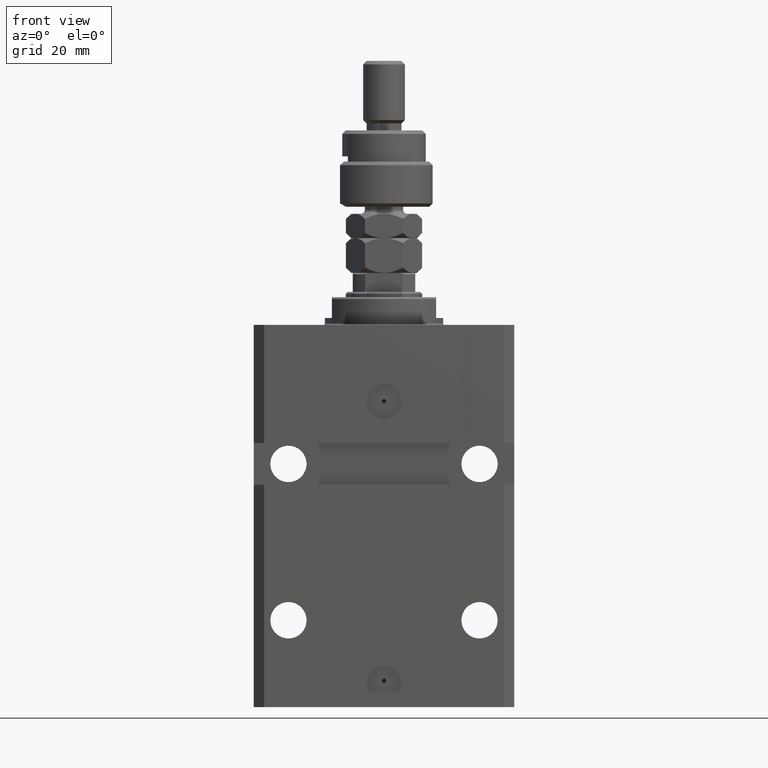
[diagram: clean part render]
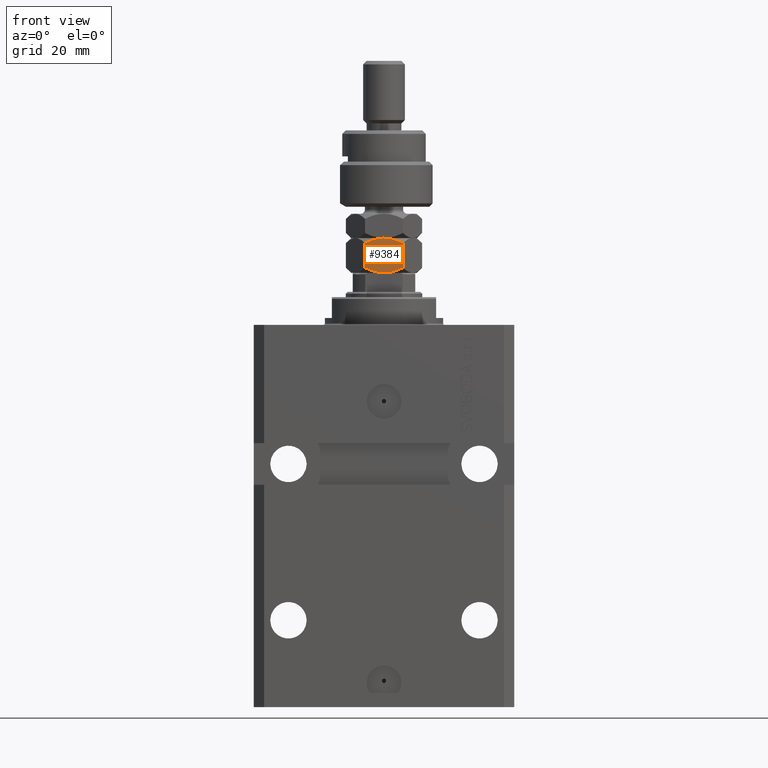
[diagram: same view with one face highlighted and labeled with its STEP entity id]
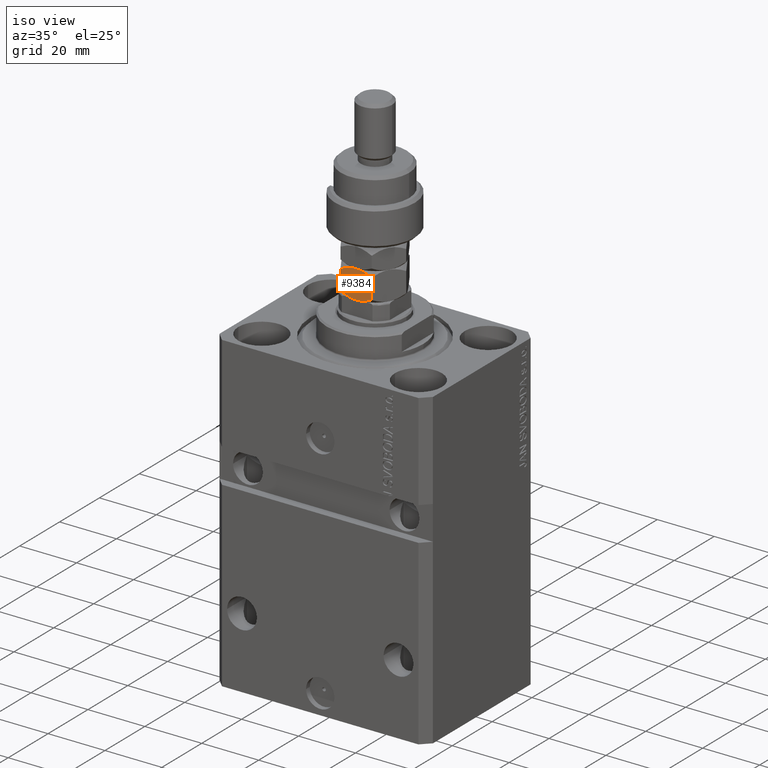
[diagram: same view with one face highlighted and labeled with its STEP entity id]
A machine part, front view. The second image highlights one B-rep face of the part: STEP entity #9384.
A second angle (iso view) of the same face is appended — the face is thin or edge-on in the first view.
In plain terms, the highlighted planar face has unit normal (0, 1, 0).
Its self-contained STEP definition (entity closure, byte-faithful):
#742 = CARTESIAN_POINT ( 'NONE',  ( 3.111617971331821941, -9.173161641239184760, 0.1458756157754678706 ) ) ;
#901 = LINE ( 'NONE', #19689, #1715 ) ;
#1684 = CARTESIAN_POINT ( 'NONE',  ( 3.091726368128221658, -9.184646063703393537, 9.820258145287965590 ) ) ;
#1715 = VECTOR ( 'NONE', #31105, 1000.000000000000000 ) ;
#1930 = CARTESIAN_POINT ( 'NONE',  ( 1.506594318812379374, -10.09982247907699637, 9.325825117528726338 ) ) ;
#3409 = PLANE ( 'NONE',  #27873 ) ;
#3502 = ORIENTED_EDGE ( 'NONE', *, *, #31182, .F. ) ;
#4288 = ORIENTED_EDGE ( 'NONE', *, *, #18318, .T. ) ;
#4790 = CARTESIAN_POINT ( 'NONE',  ( 4.749999999999995559, -8.227241335952170331, 0.000000000000000000 ) ) ;
#4948 = CARTESIAN_POINT ( 'NONE',  ( -2.946964139499808652E-15, -10.96965511460288667, 1.469655114602881563 ) ) ;
#5545 = DIRECTION ( 'NONE',  ( -0.000000000000000000, -0.000000000000000000, -1.000000000000000000 ) ) ;
#7098 = VERTEX_POINT ( 'NONE', #37379 ) ;
#7137 = CARTESIAN_POINT ( 'NONE',  ( 5.588267949974988547, -7.743267109381074320, 0.03770576873299950893 ) ) ;
#8314 = ORIENTED_EDGE ( 'NONE', *, *, #31808, .F. ) ;
#8464 = VERTEX_POINT ( 'NONE', #20867 ) ;
#8597 = CARTESIAN_POINT ( 'NONE',  ( -2.946964139499808652E-15, -10.96965511460288667, 1.469655114602881563 ) ) ;
#9384 = ADVANCED_FACE ( 'NONE', ( #22439 ), #3409, .F. ) ;
#9541 = CARTESIAN_POINT ( 'NONE',  ( 4.333978297711719385, -8.467431577757029260, 10.00000000000000178 ) ) ;
#10973 = CARTESIAN_POINT ( 'NONE',  ( 4.749999999999993783, -8.227241335952166779, 10.00000000000000000 ) ) ;
#11180 = CARTESIAN_POINT ( 'NONE',  ( 4.749999999999995559, -8.227241335952170331, 0.000000000000000000 ) ) ;
#11588 = ORIENTED_EDGE ( 'NONE', *, *, #43784, .F. ) ;
#12888 = VERTEX_POINT ( 'NONE', #36701 ) ;
#15249 = CARTESIAN_POINT ( 'NONE',  ( 4.749999999999995559, -8.227241335952170331, 0.000000000000000000 ) ) ;
#16210 = CARTESIAN_POINT ( 'NONE',  ( 1.509821400858451845, -10.09795932238899852, 0.6716369694512650534 ) ) ;
#16969 = B_SPLINE_CURVE_WITH_KNOTS ( 'NONE', 3,
 ( #31219, #49756, #23624, #30479, #27684, #7137, #19060, #15249 ),
 .UNSPECIFIED., .F., .F.,
 ( 4, 2, 2, 4 ),
 ( 2.544312669946945821E-07, 0.002843014744722344601, 0.004264394901450021744, 0.005685775058177697586 ),
 .UNSPECIFIED. ) ;
#17160 = CARTESIAN_POINT ( 'NONE',  ( 3.911732050025005236, -8.711215562523266343, 9.962294231267000200 ) ) ;
#17707 = CARTESIAN_POINT ( 'NONE',  ( -3.035766082959412415E-15, -10.96965511460288667, 10.00000000000000000 ) ) ;
#18318 = EDGE_CURVE ( 'NONE', #12888, #33648, #32438, .T. ) ;
#19060 = CARTESIAN_POINT ( 'NONE',  ( 5.166021702288269069, -7.987051094147306074, -7.826584432629735133E-16 ) ) ;
#19689 = CARTESIAN_POINT ( 'NONE',  ( 9.500000000000000000, -5.484827557301446888, 10.00000000000000000 ) ) ;
#19697 = EDGE_LOOP ( 'NONE', ( #8314, #3502, #21233, #38916, #4288, #11588 ) ) ;
#20867 = CARTESIAN_POINT ( 'NONE',  ( 9.500000000000000000, -5.484827557301446888, 1.469655114602885337 ) ) ;
#20999 = B_SPLINE_CURVE_WITH_KNOTS ( 'NONE', 3,
 ( #47786, #32052, #24703, #40670, #36616, #40161 ),
 .UNSPECIFIED., .F., .F.,
 ( 4, 2, 4 ),
 ( 0.005685775058177688045, 0.008508623398180323663, 0.01133147173818295841 ),
 .UNSPECIFIED. ) ;
#21233 = ORIENTED_EDGE ( 'NONE', *, *, #43215, .F. ) ;
#22439 = FACE_OUTER_BOUND ( 'NONE', #19697, .T. ) ;
#22647 = CARTESIAN_POINT ( 'NONE',  ( 0.7448681452486567434, -10.53960529043279593, 8.960394709567211180 ) ) ;
#23624 = CARTESIAN_POINT ( 'NONE',  ( 7.993405681187615741, -6.354660192827339849, 0.6741748824712785471 ) ) ;
#24332 = CARTESIAN_POINT ( 'NONE',  ( 3.923784602134042565, -8.704257018318692474, -9.910285482875310023E-16 ) ) ;
#24703 = CARTESIAN_POINT ( 'NONE',  ( 6.388382028668173618, -7.281321030665154126, 9.854124384224535405 ) ) ;
#27684 = CARTESIAN_POINT ( 'NONE',  ( 6.408273631871770348, -7.269836608200942685, 0.1797418547120343268 ) ) ;
#27873 = AXIS2_PLACEMENT_3D ( 'NONE', #30299, #49575, #49316 ) ;
#28062 = B_SPLINE_CURVE_WITH_KNOTS ( 'NONE', 3,
 ( #44041, #22647, #1930, #32872, #1684, #17160, #9541, #10973 ),
 .UNSPECIFIED., .F., .F.,
 ( 4, 2, 2, 4 ),
 ( 2.544312669947217401E-07, 0.002843014744722341565, 0.004264394901450014805, 0.005685775058177688045 ),
 .UNSPECIFIED. ) ;
#30129 = VERTEX_POINT ( 'NONE', #49421 ) ;
#30299 = CARTESIAN_POINT ( 'NONE',  ( -3.035766082959412415E-15, -10.96965511460288667, 10.00000000000000000 ) ) ;
#30479 = CARTESIAN_POINT ( 'NONE',  ( 6.809745054052667612, -7.038046974532859323, 0.2834621384311892811 ) ) ;
#30685 = B_SPLINE_CURVE_WITH_KNOTS ( 'NONE', 3,
 ( #4790, #24332, #742, #16210, #39793, #8597 ),
 .UNSPECIFIED., .F., .F.,
 ( 4, 2, 4 ),
 ( 0.005685775058177697586, 0.008508623398180328867, 0.01133147173818295841 ),
 .UNSPECIFIED. ) ;
#31105 = DIRECTION ( 'NONE',  ( -0.000000000000000000, -0.000000000000000000, -1.000000000000000000 ) ) ;
#31182 = EDGE_CURVE ( 'NONE', #30129, #8464, #901, .T. ) ;
#31219 = CARTESIAN_POINT ( 'NONE',  ( 9.500000000000000000, -5.484827557301446888, 1.469655114602885337 ) ) ;
#31808 = EDGE_CURVE ( 'NONE', #8464, #48889, #16969, .T. ) ;
#32052 = CARTESIAN_POINT ( 'NONE',  ( 5.576215397865946777, -7.750225653585648189, 10.00000000000000000 ) ) ;
#32438 = LINE ( 'NONE', #17707, #37794 ) ;
#32872 = CARTESIAN_POINT ( 'NONE',  ( 2.690254945947323062, -9.416435697371476010, 9.716537861568811607 ) ) ;
#33648 = VERTEX_POINT ( 'NONE', #4948 ) ;
#36616 = CARTESIAN_POINT ( 'NONE',  ( 8.755994125639032788, -5.914379549142412706, 8.959896877238172408 ) ) ;
#36701 = CARTESIAN_POINT ( 'NONE',  ( -3.001642536556159024E-15, -10.96965511460288667, 8.530344885397118659 ) ) ;
#37379 = CARTESIAN_POINT ( 'NONE',  ( 4.749999999999993783, -8.227241335952166779, 10.00000000000000000 ) ) ;
#37794 = VECTOR ( 'NONE', #5545, 1000.000000000000000 ) ;
#38139 = EDGE_CURVE ( 'NONE', #12888, #7098, #28062, .T. ) ;
#38916 = ORIENTED_EDGE ( 'NONE', *, *, #38139, .F. ) ;
#39793 = CARTESIAN_POINT ( 'NONE',  ( 0.7440058743609598846, -10.54010312276192174, 1.040103122761826704 ) ) ;
#40161 = CARTESIAN_POINT ( 'NONE',  ( 9.500000000000000000, -5.484827557301447776, 8.530344885397115107 ) ) ;
#40670 = CARTESIAN_POINT ( 'NONE',  ( 7.990178599141542826, -6.356523349515335042, 9.328363030548731061 ) ) ;
#43215 = EDGE_CURVE ( 'NONE', #7098, #30129, #20999, .T. ) ;
#43784 = EDGE_CURVE ( 'NONE', #48889, #33648, #30685, .T. ) ;
#44041 = CARTESIAN_POINT ( 'NONE',  ( -3.001642536556159024E-15, -10.96965511460288667, 8.530344885397118659 ) ) ;
#47786 = CARTESIAN_POINT ( 'NONE',  ( 4.749999999999993783, -8.227241335952166779, 10.00000000000000000 ) ) ;
#48889 = VERTEX_POINT ( 'NONE', #11180 ) ;
#49316 = DIRECTION ( 'NONE',  ( -0.8660254037844389297, -0.4999999999999994449, 0.000000000000000000 ) ) ;
#49421 = CARTESIAN_POINT ( 'NONE',  ( 9.500000000000000000, -5.484827557301447776, 8.530344885397115107 ) ) ;
#49575 = DIRECTION ( 'NONE',  ( -0.4999999999999995004, 0.8660254037844390407, 0.000000000000000000 ) ) ;
#49756 = CARTESIAN_POINT ( 'NONE',  ( 8.755131854751340370, -5.914877381471539408, 1.039605290432796370 ) ) ;